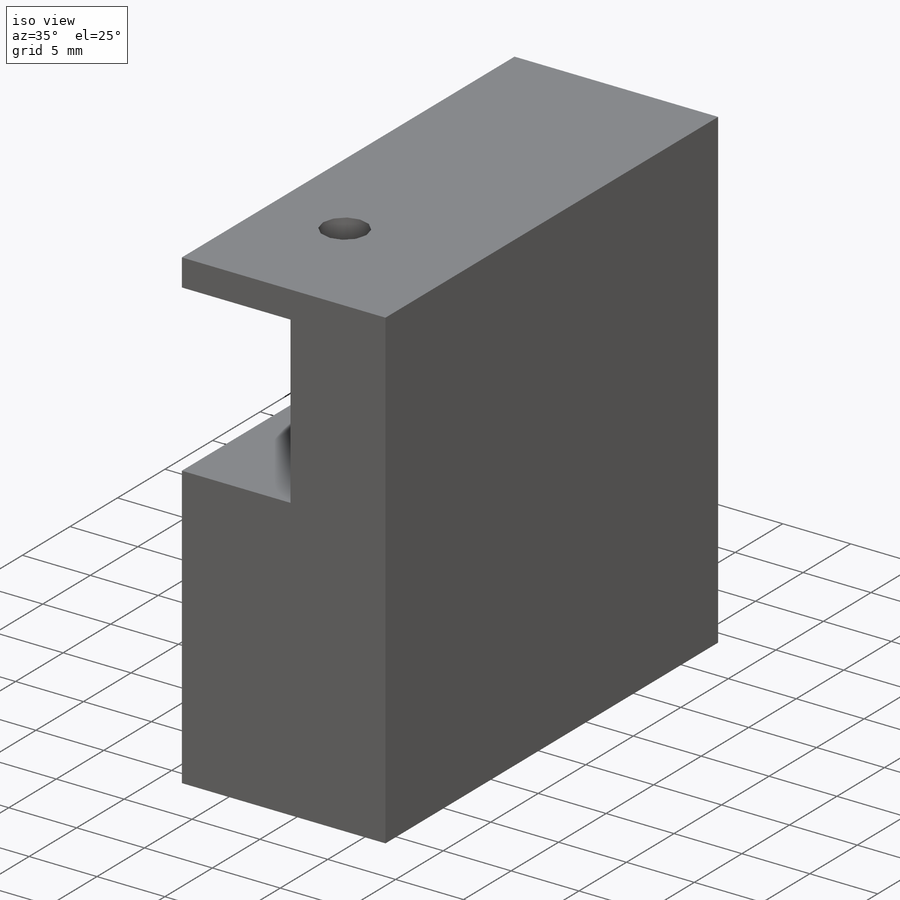
[diagram: iso view]
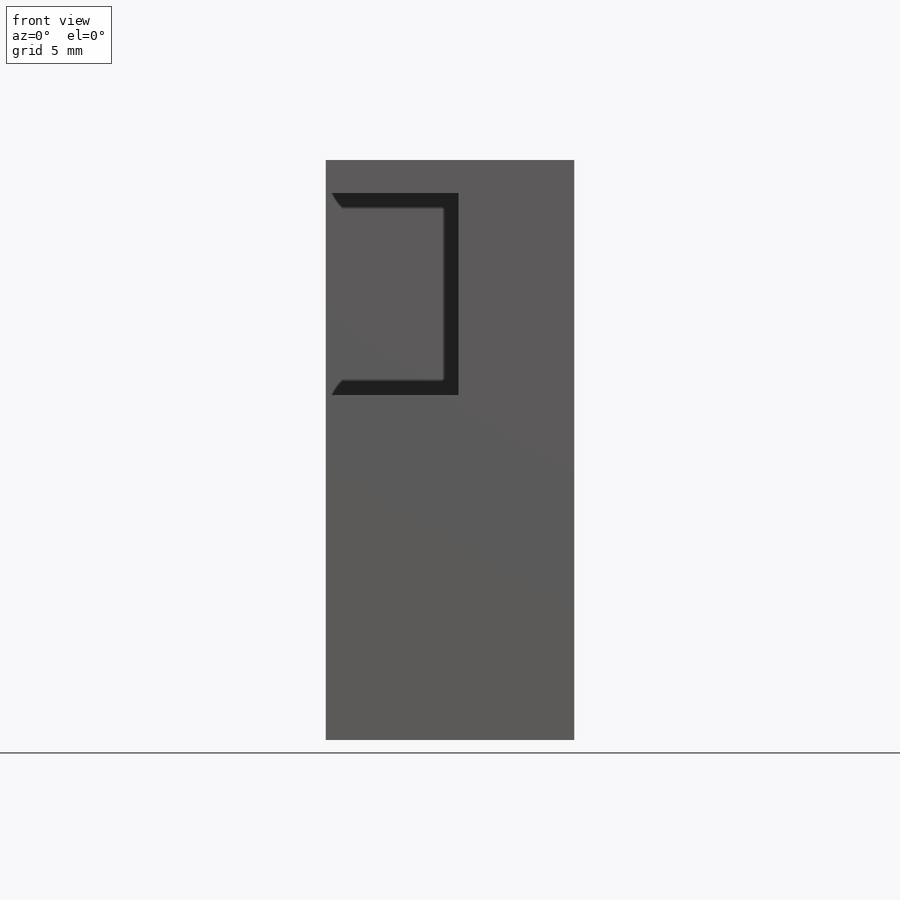
[diagram: front view]
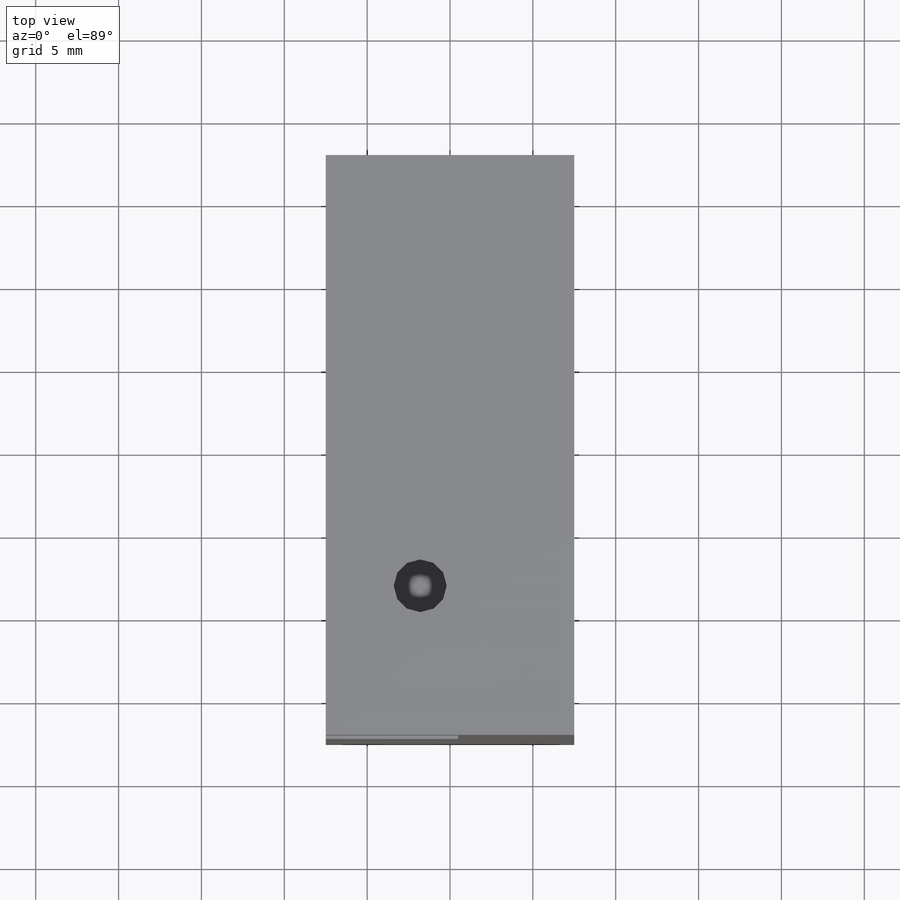
[diagram: top view]
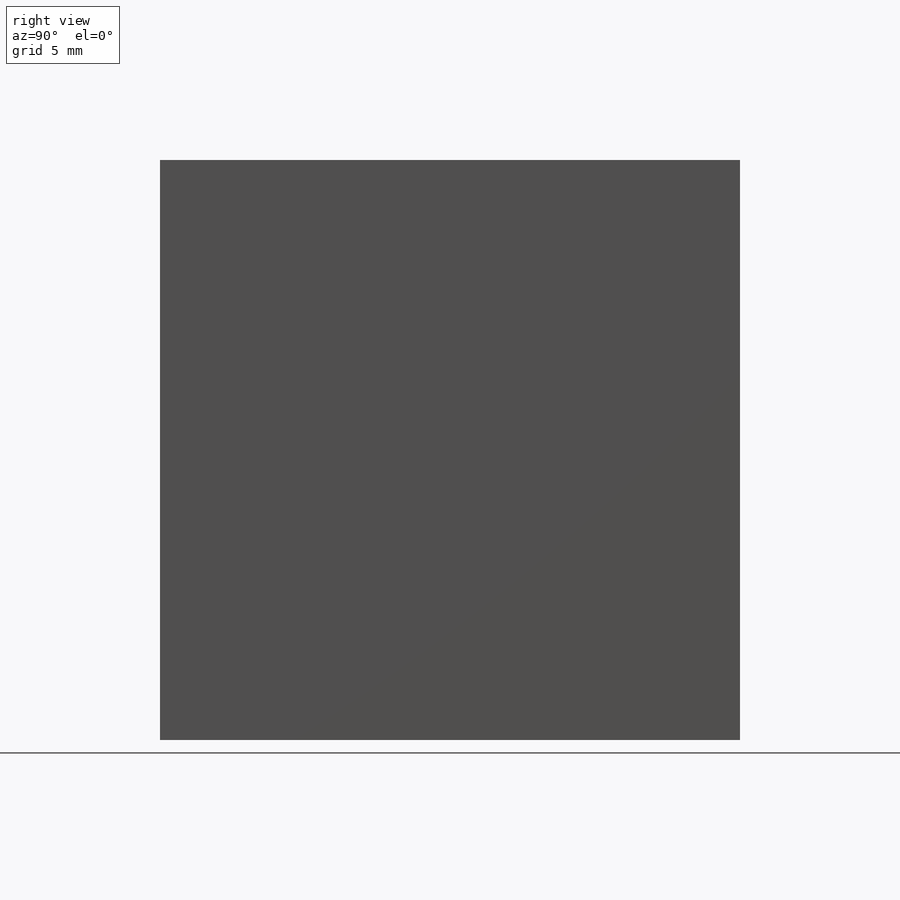
[diagram: right view]
SOLIDWORKS PART (.sldprt)
format: sldprt  version: not decoded by parser v0  size: 176,128 bytes
history: native  units: mm
features: sketch x4, cut_extrude x3, material x1, extrude x1 + 1 further entry (+13 scaffold rows collapsed)
feature tree (23):
  scaffold x13  (default folders/planes/origin — collapsed)
  material  "6061-T6 Al"
  "Origin"  ID=-1
  sketch  "Sketch1"  dims[D1=35.0mm D2=15.0mm]
  extrude  "Boss-Extrude1"  Depth=35mm
  sketch  "Sketch2"  dims[D1=6.7mm D2=2.2mm D3=5.0mm]
  cut_extrude  "Cut-Extrude1"  Depth=8mm
  sketch  "Sketch3"  dims[D1=12.2mm D2=2.0mm D3=8.0mm]
  cut_extrude  "Cut-Extrude2"  Depth=18mm
  sketch  "Sketch4"  dims[D3=3.2mm D1=9.0mm D2=2.3mm]
  cut_extrude  "Cut-Extrude3"  Depth=8mm
decode coverage: 8 of 8 modeling features carry decoded parameters; 1 rows unclassified (native names shown)
note: suppression state not decoded; provenance and decode notes live in map.json
